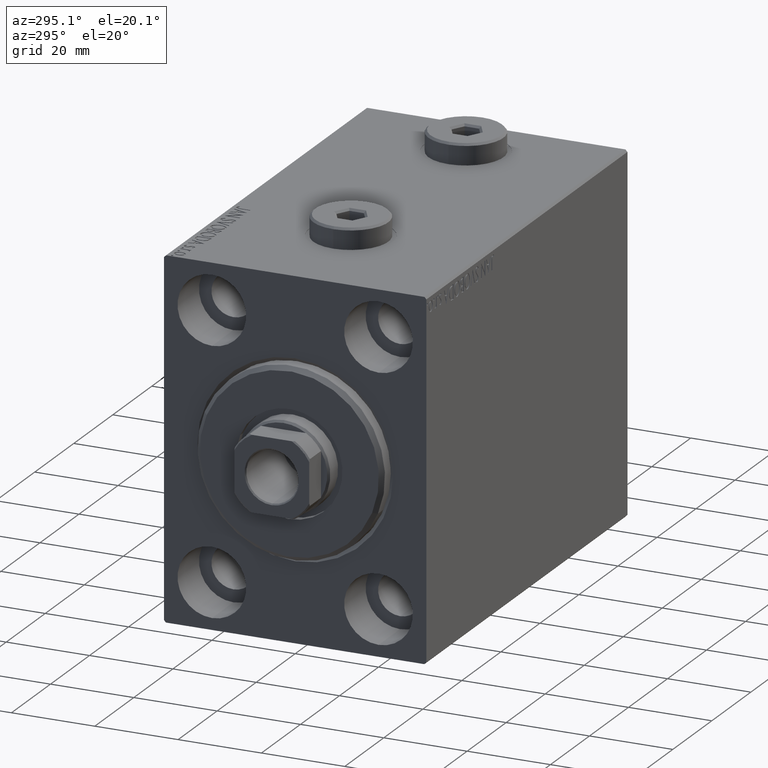
[diagram: clean part render]
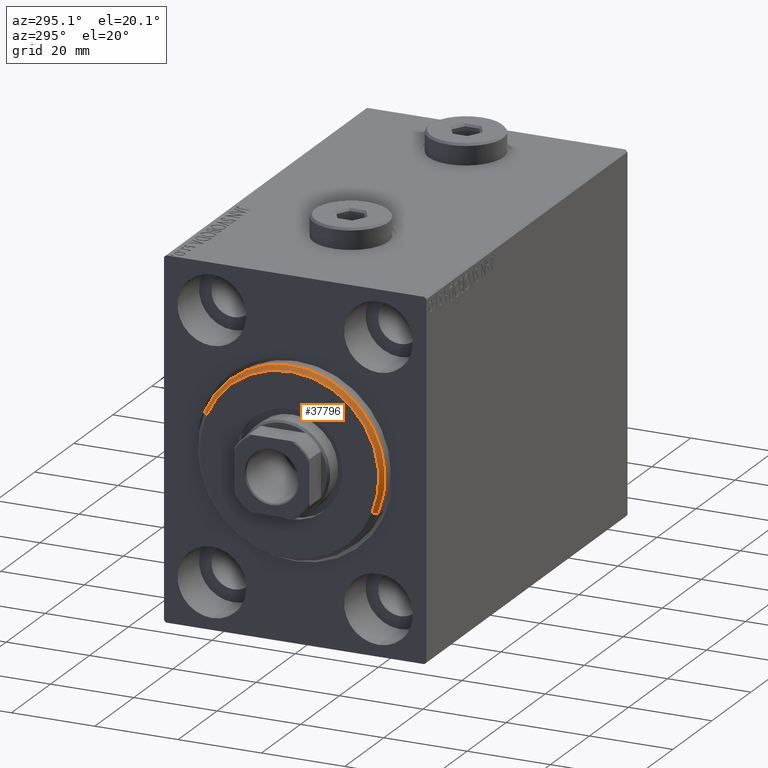
[diagram: same view with one face highlighted and labeled with its STEP entity id]
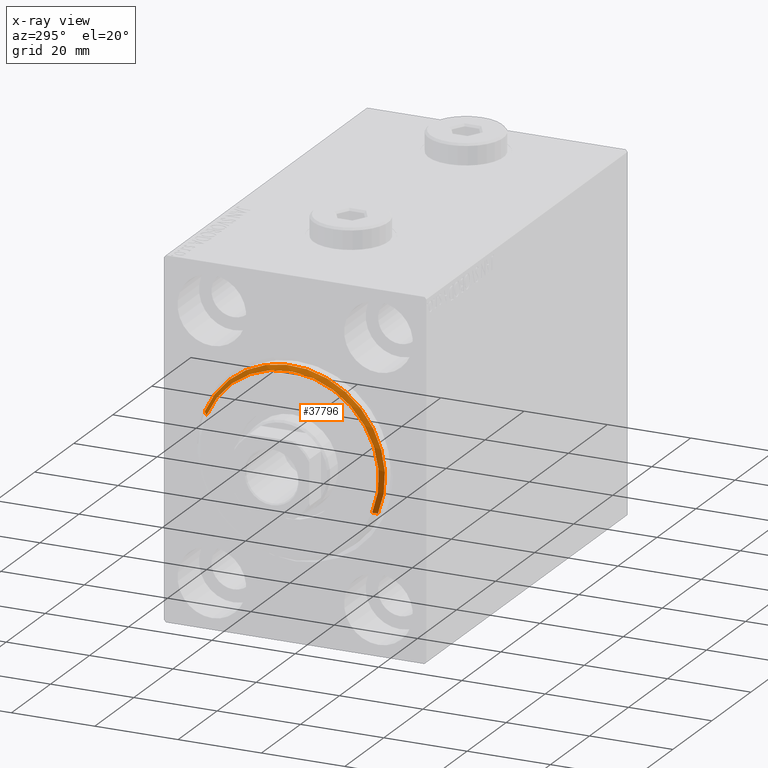
[diagram: x-ray of the same camera — body ghosted, the highlighted face saturated]
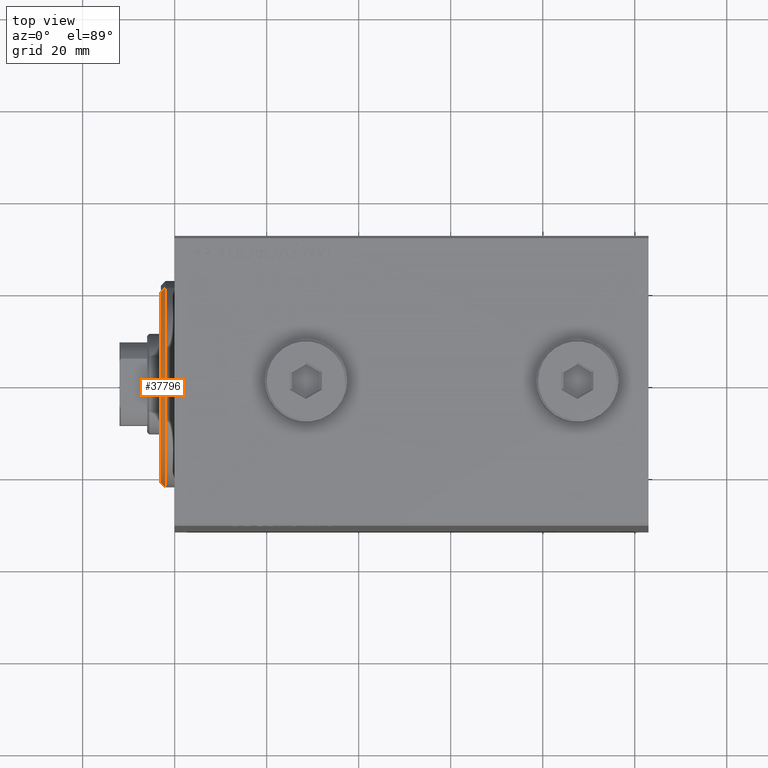
[diagram: same view with one face highlighted and labeled with its STEP entity id]
A machine part, auxiliary view. The second image highlights one B-rep face of the part: STEP entity #37796.
The next image is the same camera in x-ray: the body ghosted, the highlighted face saturated — about 0% of this face is hidden behind the body in this view.
A second angle (top view) of the same face is appended — the face is thin or edge-on in the first view.
In plain terms, the highlighted conical surface has half-angle 45 deg.
Its self-contained STEP definition (entity closure, byte-faithful):
#1177 = FACE_OUTER_BOUND ( 'NONE', #6590, .T. ) ;
#4143 = ORIENTED_EDGE ( 'NONE', *, *, #15828, .F. ) ;
#4609 = DIRECTION ( 'NONE',  ( 0.000000000000000000, 0.000000000000000000, 1.000000000000000000 ) ) ;
#4765 = VECTOR ( 'NONE', #10822, 1000.000000000000000 ) ;
#5537 = CONICAL_SURFACE ( 'NONE', #32566, 21.50000000000000355, 0.7853981633974466137 ) ;
#5697 = AXIS2_PLACEMENT_3D ( 'NONE', #33344, #26485, #20086 ) ;
#6590 = EDGE_LOOP ( 'NONE', ( #4143, #42194, #18562, #19187 ) ) ;
#10117 = CARTESIAN_POINT ( 'NONE',  ( 3.000000000000000000, 2.694222958124177598E-15, -21.50000000000000355 ) ) ;
#10822 = DIRECTION ( 'NONE',  ( -0.7071067811865487940, 0.000000000000000000, 0.7071067811865463515 ) ) ;
#10963 = EDGE_CURVE ( 'NONE', #18994, #42436, #25437, .T. ) ;
#15828 = EDGE_CURVE ( 'NONE', #26226, #17334, #19351, .T. ) ;
#16712 = DIRECTION ( 'NONE',  ( -1.000000000000000000, 0.000000000000000000, 0.000000000000000000 ) ) ;
#17334 = VERTEX_POINT ( 'NONE', #33104 ) ;
#18562 = ORIENTED_EDGE ( 'NONE', *, *, #10963, .T. ) ;
#18986 = EDGE_CURVE ( 'NONE', #18994, #26226, #21008, .T. ) ;
#18994 = VERTEX_POINT ( 'NONE', #44093 ) ;
#19187 = ORIENTED_EDGE ( 'NONE', *, *, #25556, .F. ) ;
#19351 = LINE ( 'NONE', #29202, #20940 ) ;
#19601 = CIRCLE ( 'NONE', #45142, 22.50000000000000355 ) ;
#20086 = DIRECTION ( 'NONE',  ( 0.000000000000000000, 0.000000000000000000, -1.000000000000000000 ) ) ;
#20807 = DIRECTION ( 'NONE',  ( 0.000000000000000000, 0.000000000000000000, -1.000000000000000000 ) ) ;
#20940 = VECTOR ( 'NONE', #30097, 1000.000000000000000 ) ;
#21008 = CIRCLE ( 'NONE', #5697, 21.50000000000000355 ) ;
#25437 = LINE ( 'NONE', #39378, #4765 ) ;
#25556 = EDGE_CURVE ( 'NONE', #17334, #42436, #19601, .T. ) ;
#26226 = VERTEX_POINT ( 'NONE', #10117 ) ;
#26485 = DIRECTION ( 'NONE',  ( 1.000000000000000000, -0.000000000000000000, 0.000000000000000000 ) ) ;
#29202 = CARTESIAN_POINT ( 'NONE',  ( 3.000000000000000000, 2.632990618166810024E-15, -21.50000000000000355 ) ) ;
#30097 = DIRECTION ( 'NONE',  ( -0.7071067811865487940, 8.659560562354919300E-17, -0.7071067811865463515 ) ) ;
#32566 = AXIS2_PLACEMENT_3D ( 'NONE', #43236, #39568, #4609 ) ;
#33104 = CARTESIAN_POINT ( 'NONE',  ( 1.999999999999999112, 2.755455298081545172E-15, -22.50000000000000355 ) ) ;
#33344 = CARTESIAN_POINT ( 'NONE',  ( 3.000000000000000000, 0.000000000000000000, 0.000000000000000000 ) ) ;
#37796 = ADVANCED_FACE ( 'NONE', ( #1177 ), #5537, .T. ) ;
#38795 = CARTESIAN_POINT ( 'NONE',  ( 1.999999999999999112, 0.000000000000000000, 22.50000000000000355 ) ) ;
#39378 = CARTESIAN_POINT ( 'NONE',  ( 3.000000000000000000, 0.000000000000000000, 21.50000000000000355 ) ) ;
#39568 = DIRECTION ( 'NONE',  ( -1.000000000000000000, 0.000000000000000000, 0.000000000000000000 ) ) ;
#42194 = ORIENTED_EDGE ( 'NONE', *, *, #18986, .F. ) ;
#42436 = VERTEX_POINT ( 'NONE', #38795 ) ;
#43236 = CARTESIAN_POINT ( 'NONE',  ( 3.000000000000000000, 0.000000000000000000, 0.000000000000000000 ) ) ;
#44093 = CARTESIAN_POINT ( 'NONE',  ( 3.000000000000000000, 0.000000000000000000, 21.50000000000000355 ) ) ;
#44818 = CARTESIAN_POINT ( 'NONE',  ( 1.999999999999999112, 0.000000000000000000, 0.000000000000000000 ) ) ;
#45142 = AXIS2_PLACEMENT_3D ( 'NONE', #44818, #16712, #20807 ) ;